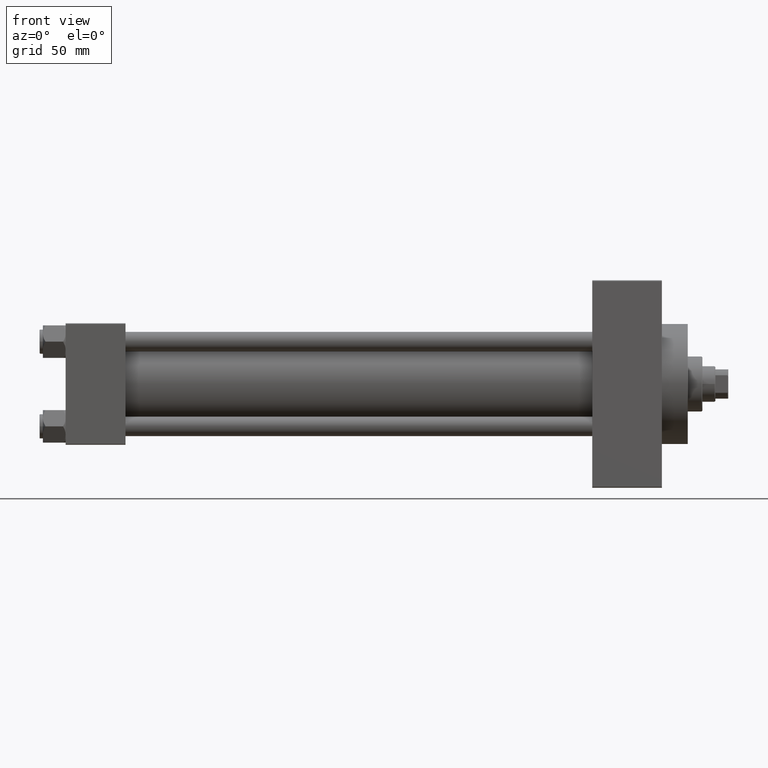
[diagram: clean part render]
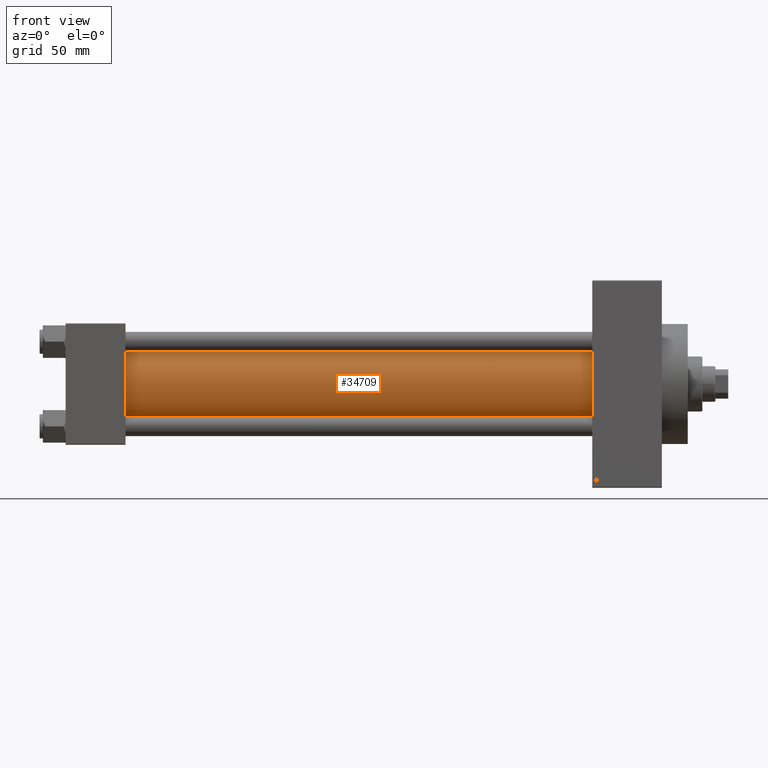
[diagram: same view with one face highlighted and labeled with its STEP entity id]
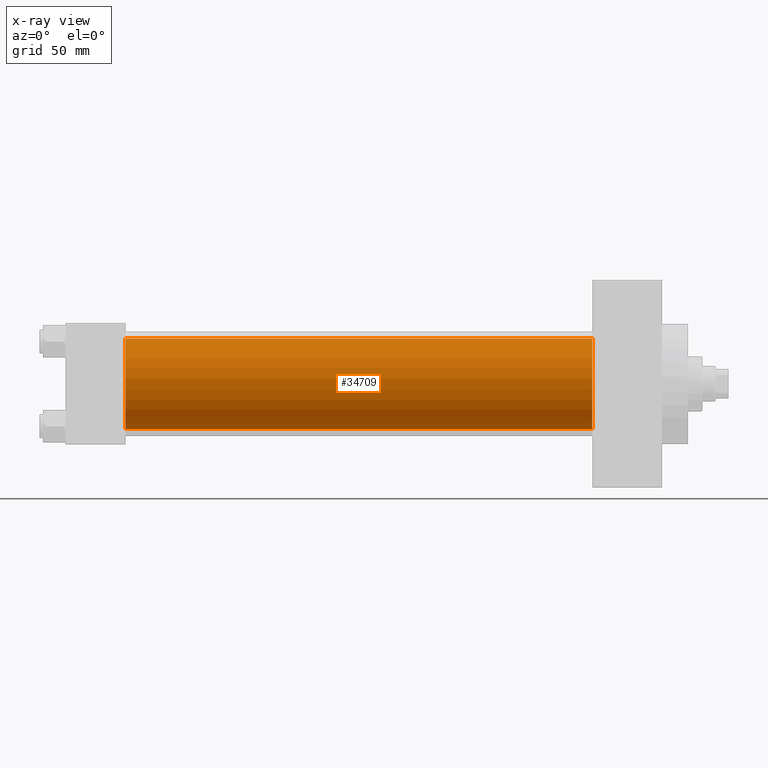
[diagram: x-ray of the same camera — body ghosted, the highlighted face saturated]
A machine part, front view. The second image highlights one B-rep face of the part: STEP entity #34709.
The next image is the same camera in x-ray: the body ghosted, the highlighted face saturated — about 0% of this face is hidden behind the body in this view.
In plain terms, the highlighted cylindrical surface (partial cylindrical patch) has radius 28 mm, axis along (-1, -0, -0).
Its self-contained STEP definition (entity closure, byte-faithful):
#45 = EDGE_CURVE ( 'NONE', #29620, #10958, #14576, .T. ) ;
#1552 = AXIS2_PLACEMENT_3D ( 'NONE', #3665, #33720, #26439 ) ;
#2287 = EDGE_CURVE ( 'NONE', #35576, #29620, #16761, .T. ) ;
#3665 = CARTESIAN_POINT ( 'NONE',  ( 324.9999999999999432, -2.602085213965210642E-15, 0.000000000000000000 ) ) ;
#4052 = CARTESIAN_POINT ( 'NONE',  ( 324.9999999999999432, 8.269258236473784371E-16, -28.00000000000000000 ) ) ;
#6529 = CARTESIAN_POINT ( 'NONE',  ( 36.99999999999997868, -2.602085213965210642E-15, 0.000000000000000000 ) ) ;
#7087 = VECTOR ( 'NONE', #19308, 1000.000000000000000 ) ;
#7423 = CYLINDRICAL_SURFACE ( 'NONE', #1552, 28.00000000000000000 ) ;
#10958 = VERTEX_POINT ( 'NONE', #16908 ) ;
#11219 = DIRECTION ( 'NONE',  ( -1.000000000000000000, -0.000000000000000000, -0.000000000000000000 ) ) ;
#11445 = ORIENTED_EDGE ( 'NONE', *, *, #20281, .T. ) ;
#14268 = DIRECTION ( 'NONE',  ( 0.000000000000000000, 0.000000000000000000, 1.000000000000000000 ) ) ;
#14576 = LINE ( 'NONE', #4052, #7087 ) ;
#14585 = ORIENTED_EDGE ( 'NONE', *, *, #48408, .T. ) ;
#16307 = EDGE_LOOP ( 'NONE', ( #36717, #37899, #11445, #14585 ) ) ;
#16761 = CIRCLE ( 'NONE', #34377, 28.00000000000000000 ) ;
#16908 = CARTESIAN_POINT ( 'NONE',  ( 36.99999999999997868, 8.269258236473784371E-16, -28.00000000000000000 ) ) ;
#18779 = DIRECTION ( 'NONE',  ( 1.000000000000000000, -0.000000000000000000, 0.000000000000000000 ) ) ;
#19308 = DIRECTION ( 'NONE',  ( -1.000000000000000000, -0.000000000000000000, -0.000000000000000000 ) ) ;
#20281 = EDGE_CURVE ( 'NONE', #35576, #43973, #23208, .T. ) ;
#22194 = CARTESIAN_POINT ( 'NONE',  ( 324.9999999999999432, -2.602085213965210642E-15, 28.00000000000000000 ) ) ;
#23208 = LINE ( 'NONE', #30259, #43655 ) ;
#23490 = CARTESIAN_POINT ( 'NONE',  ( 324.9999999999999432, -2.602085213965210642E-15, 0.000000000000000000 ) ) ;
#26439 = DIRECTION ( 'NONE',  ( 0.000000000000000000, 0.000000000000000000, 1.000000000000000000 ) ) ;
#29143 = CIRCLE ( 'NONE', #35552, 28.00000000000000000 ) ;
#29620 = VERTEX_POINT ( 'NONE', #31348 ) ;
#30259 = CARTESIAN_POINT ( 'NONE',  ( 324.9999999999999432, -2.602085213965210642E-15, 28.00000000000000000 ) ) ;
#31348 = CARTESIAN_POINT ( 'NONE',  ( 324.9999999999999432, 8.269258236473784371E-16, -28.00000000000000000 ) ) ;
#32964 = CARTESIAN_POINT ( 'NONE',  ( 36.99999999999997868, -2.602085213965210642E-15, 28.00000000000000000 ) ) ;
#33720 = DIRECTION ( 'NONE',  ( -1.000000000000000000, -0.000000000000000000, -0.000000000000000000 ) ) ;
#34377 = AXIS2_PLACEMENT_3D ( 'NONE', #23490, #46051, #39284 ) ;
#34709 = ADVANCED_FACE ( 'NONE', ( #45490 ), #7423, .T. ) ;
#35552 = AXIS2_PLACEMENT_3D ( 'NONE', #6529, #18779, #14268 ) ;
#35576 = VERTEX_POINT ( 'NONE', #22194 ) ;
#36717 = ORIENTED_EDGE ( 'NONE', *, *, #45, .F. ) ;
#37899 = ORIENTED_EDGE ( 'NONE', *, *, #2287, .F. ) ;
#39284 = DIRECTION ( 'NONE',  ( 0.000000000000000000, 0.000000000000000000, -1.000000000000000000 ) ) ;
#43655 = VECTOR ( 'NONE', #11219, 1000.000000000000000 ) ;
#43973 = VERTEX_POINT ( 'NONE', #32964 ) ;
#45490 = FACE_OUTER_BOUND ( 'NONE', #16307, .T. ) ;
#46051 = DIRECTION ( 'NONE',  ( 1.000000000000000000, 0.000000000000000000, 0.000000000000000000 ) ) ;
#48408 = EDGE_CURVE ( 'NONE', #43973, #10958, #29143, .T. ) ;